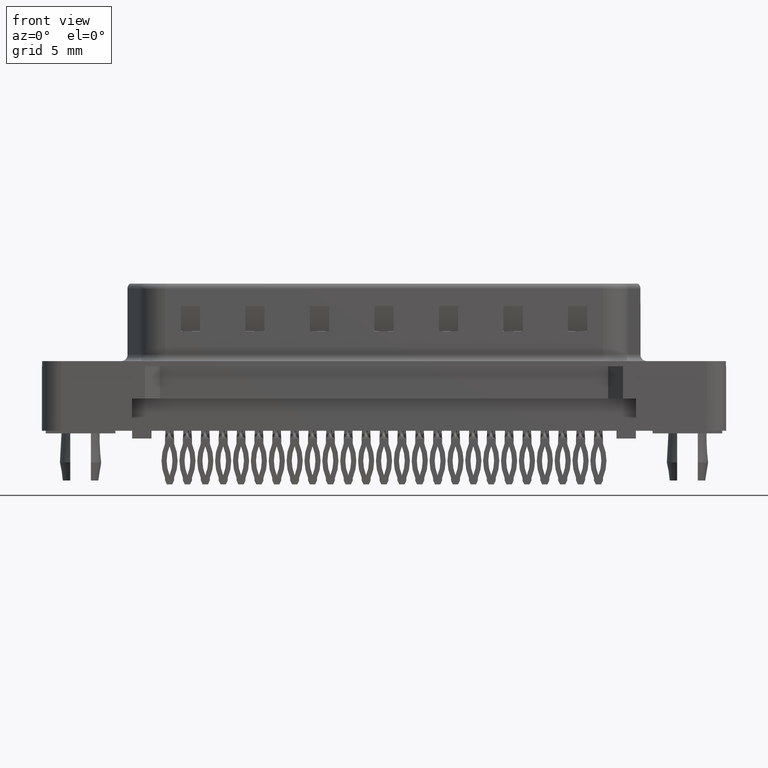
[diagram: clean part render]
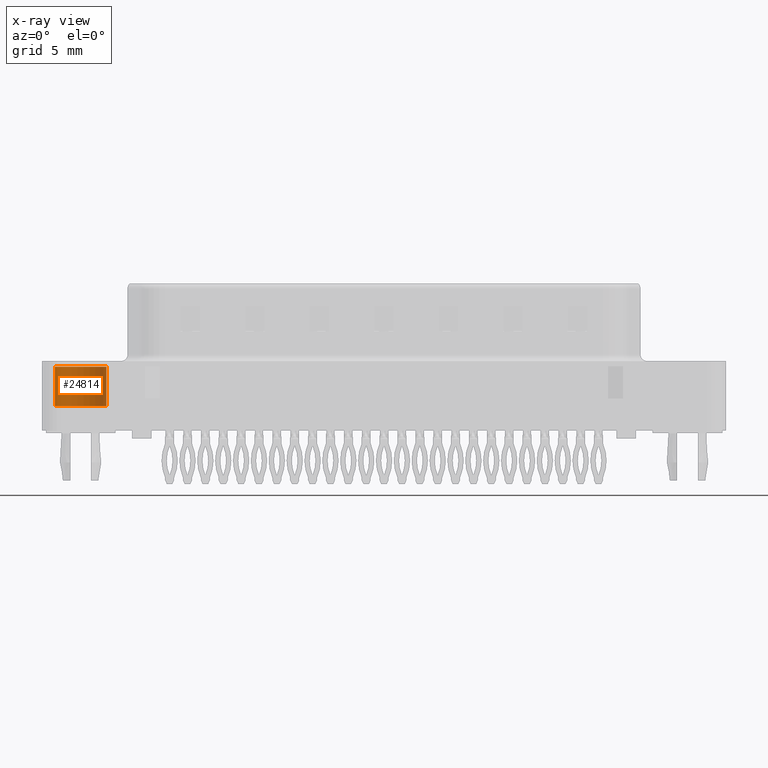
[diagram: x-ray — body ghosted, one internal face saturated and labeled with its STEP entity id]
A machine part, front view, then the same camera in x-ray: the body is ghosted and one INTERNAL B-rep face — a face not visible from any outside direction — is saturated and labeled: STEP entity #24814.
In plain terms, the highlighted cylindrical surface (edge-blend (fillet) strip) has radius 2 mm, axis along (0, 0, 1).
Its self-contained STEP definition (entity closure, byte-faithful):
#520 = VERTEX_POINT ( 'NONE', #23108 ) ;
#1050 = VERTEX_POINT ( 'NONE', #13470 ) ;
#1176 = CARTESIAN_POINT ( 'NONE',  ( -2.000000000000000000, 2.449293598294706414E-16, -3.099999999999999645 ) ) ;
#1450 = CARTESIAN_POINT ( 'NONE',  ( -2.000000000000000000, 2.449293598294706414E-16, 0.5806333143474410319 ) ) ;
#1691 = CARTESIAN_POINT ( 'NONE',  ( 2.000000000000000000, 0.0000000000000000000, -0.05000000000000012768 ) ) ;
#2419 = DIRECTION ( 'NONE',  ( 1.000000000000000000, 0.0000000000000000000, 0.0000000000000000000 ) ) ;
#3149 = DIRECTION ( 'NONE',  ( -0.0000000000000000000, -0.0000000000000000000, 1.000000000000000000 ) ) ;
#3535 = ORIENTED_EDGE ( 'NONE', *, *, #12978, .F. ) ;
#4196 = ORIENTED_EDGE ( 'NONE', *, *, #23665, .F. ) ;
#4788 = AXIS2_PLACEMENT_3D ( 'NONE', #13412, #15302, #21095 ) ;
#5875 = EDGE_CURVE ( 'NONE', #6409, #520, #13027, .T. ) ;
#6409 = VERTEX_POINT ( 'NONE', #1176 ) ;
#6571 = DIRECTION ( 'NONE',  ( -0.0000000000000000000, -0.0000000000000000000, 1.000000000000000000 ) ) ;
#7360 = DIRECTION ( 'NONE',  ( -0.0000000000000000000, -0.0000000000000000000, 1.000000000000000000 ) ) ;
#7706 = AXIS2_PLACEMENT_3D ( 'NONE', #10609, #6571, #14489 ) ;
#8193 = CARTESIAN_POINT ( 'NONE',  ( 0.0000000000000000000, 0.0000000000000000000, 0.5806333143474410319 ) ) ;
#10609 = CARTESIAN_POINT ( 'NONE',  ( 0.0000000000000000000, 0.0000000000000000000, -0.05000000000000012768 ) ) ;
#10713 = CARTESIAN_POINT ( 'NONE',  ( 2.000000000000000000, 0.0000000000000000000, 0.5806333143474410319 ) ) ;
#12373 = VECTOR ( 'NONE', #3149, 1000.000000000000000 ) ;
#12714 = LINE ( 'NONE', #10713, #12373 ) ;
#12978 = EDGE_CURVE ( 'NONE', #6409, #1050, #15619, .T. ) ;
#13027 = LINE ( 'NONE', #1450, #23314 ) ;
#13412 = CARTESIAN_POINT ( 'NONE',  ( 0.0000000000000000000, 0.0000000000000000000, -3.099999999999999645 ) ) ;
#13470 = CARTESIAN_POINT ( 'NONE',  ( 2.000000000000000000, 0.0000000000000000000, -3.099999999999999645 ) ) ;
#14353 = CYLINDRICAL_SURFACE ( 'NONE', #16823, 2.000000000000000000 ) ;
#14489 = DIRECTION ( 'NONE',  ( 1.000000000000000000, 0.0000000000000000000, 0.0000000000000000000 ) ) ;
#15302 = DIRECTION ( 'NONE',  ( 0.0000000000000000000, 0.0000000000000000000, -1.000000000000000000 ) ) ;
#15619 = CIRCLE ( 'NONE', #4788, 2.000000000000000000 ) ;
#16151 = CIRCLE ( 'NONE', #7706, 2.000000000000000000 ) ;
#16504 = EDGE_LOOP ( 'NONE', ( #3535, #21712, #24510, #4196 ) ) ;
#16823 = AXIS2_PLACEMENT_3D ( 'NONE', #8193, #23563, #2419 ) ;
#18046 = EDGE_CURVE ( 'NONE', #22709, #520, #16151, .T. ) ;
#21095 = DIRECTION ( 'NONE',  ( -1.000000000000000000, 0.0000000000000000000, 0.0000000000000000000 ) ) ;
#21712 = ORIENTED_EDGE ( 'NONE', *, *, #5875, .T. ) ;
#22709 = VERTEX_POINT ( 'NONE', #1691 ) ;
#23108 = CARTESIAN_POINT ( 'NONE',  ( -2.000000000000000000, 2.449293598294706414E-16, -0.05000000000000012768 ) ) ;
#23314 = VECTOR ( 'NONE', #7360, 1000.000000000000000 ) ;
#23563 = DIRECTION ( 'NONE',  ( -0.0000000000000000000, -0.0000000000000000000, 1.000000000000000000 ) ) ;
#23665 = EDGE_CURVE ( 'NONE', #1050, #22709, #12714, .T. ) ;
#23829 = FACE_OUTER_BOUND ( 'NONE', #16504, .T. ) ;
#24510 = ORIENTED_EDGE ( 'NONE', *, *, #18046, .F. ) ;
#24814 = ADVANCED_FACE ( 'NONE', ( #23829 ), #14353, .T. ) ;